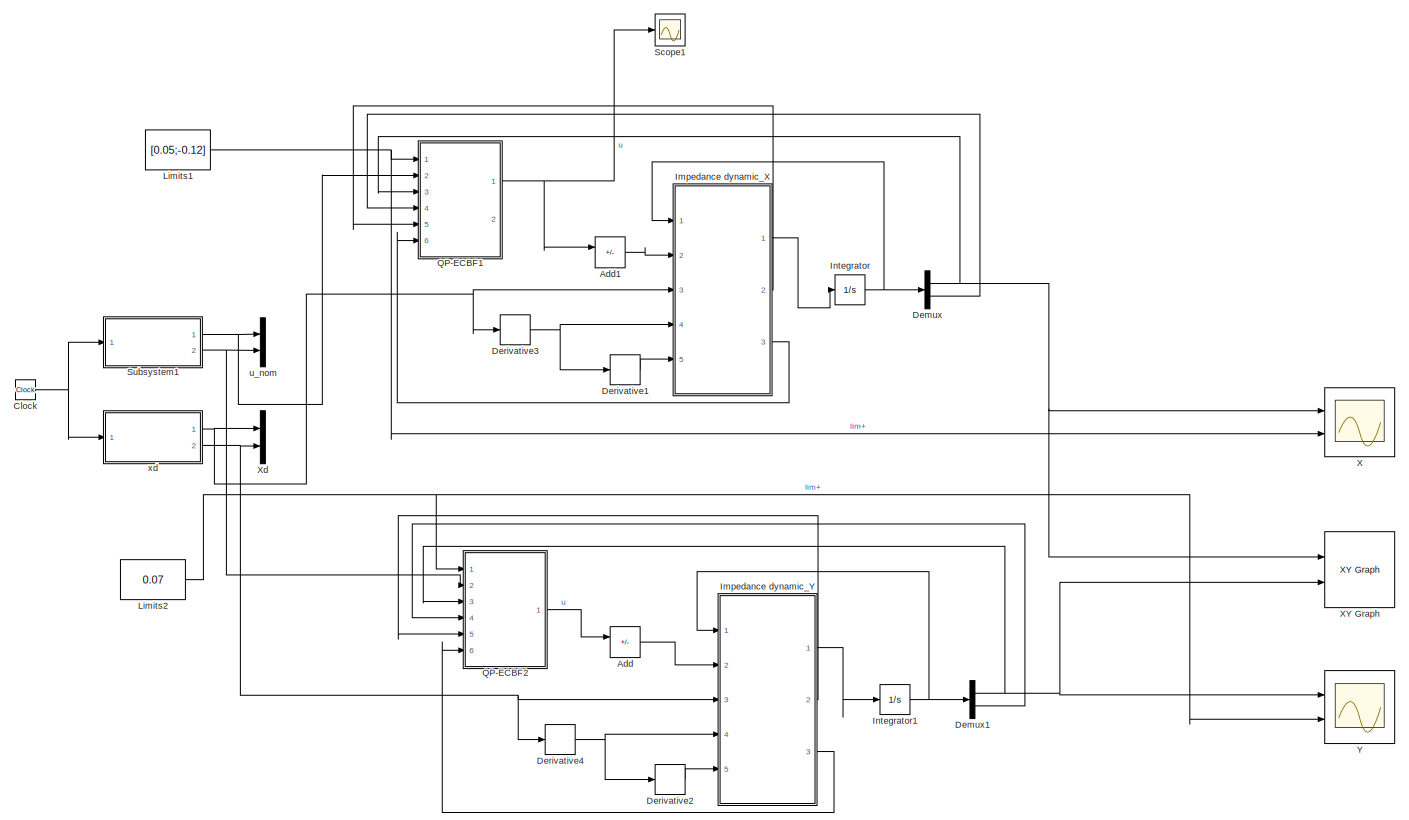
[diagram: root canvas - part 1/1, most of the canvas]
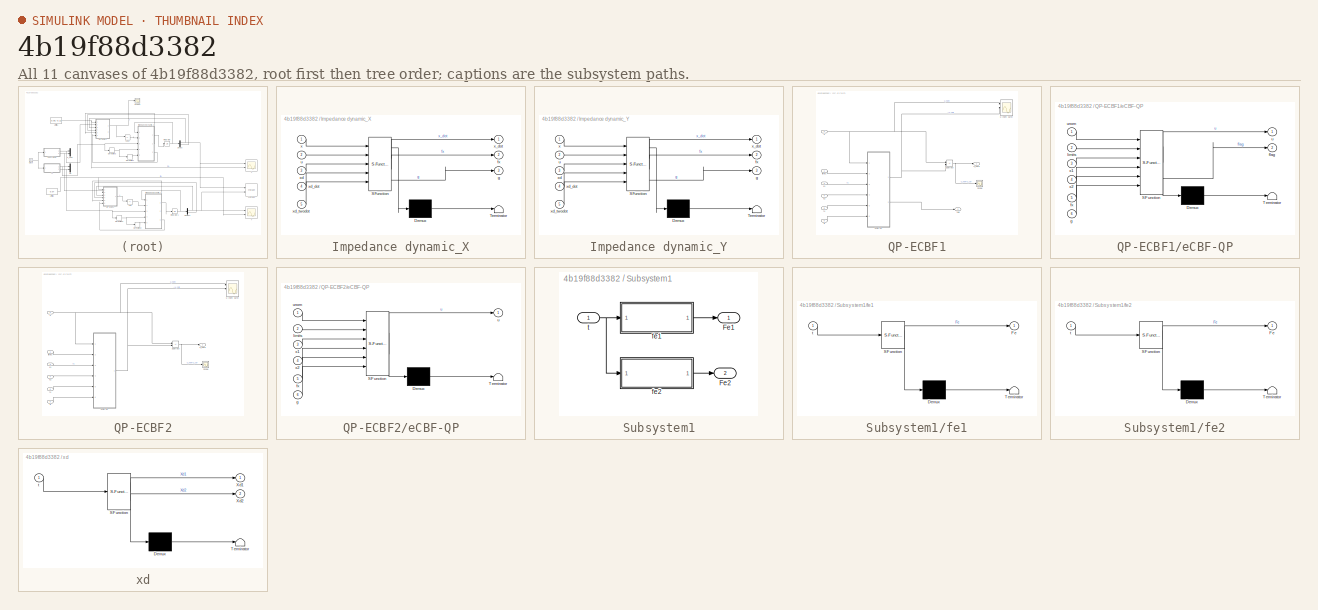
[diagram: thumbnail index - all 11 canvases of the model, root first then tree order]
MODEL slx_4b19f88d3382
KIND model
CONFIG AbsTol = auto
CONFIG EnableMultiTasking = off
CONFIG FixedStep = 0.01
CONFIG MaxStep = auto
CONFIG MinStep = auto
CONFIG RelTol = 1e-3
CONFIG SampleTimeConstraint = Unconstrained
CONFIG SolverName = ode4
CONFIG StartTime = 0.0
CONFIG StopTime = 15
BLOCK [Sum] Add
  IconShape = rectangular
  Inputs = +-
  Ports = [2, 1]
BLOCK [Sum] Add1
  IconShape = rectangular
  Inputs = +-
  Ports = [2, 1]
BLOCK [Clock] Clock
BLOCK [Demux] Demux
  Outputs = 2
  Ports = [1, 2]
BLOCK [Demux] Demux1
  Outputs = 2
  Ports = [1, 2]
BLOCK [Derivative] Derivative1
BLOCK [Derivative] Derivative2
BLOCK [Derivative] Derivative3
BLOCK [Derivative] Derivative4
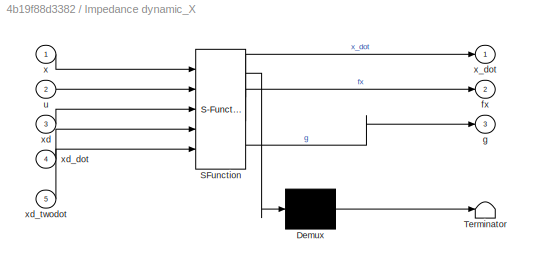
BLOCK [SubSystem] Impedance dynamic_X
  ErrorFcn = Stateflow.Translate.translate
  PermitHierarchicalResolution = ExplicitOnly
  Ports = [5, 3]
  RequestExecContextInheritance = off
  SFBlockType = MATLAB Function
  TreatAsAtomicUnit = on
BLOCK [Demux] Impedance dynamic_X/ Demux 
  Outputs = 1
  Ports = [1, 1]
BLOCK [S-Function] Impedance dynamic_X/ SFunction 
  EnableBusSupport = on
  FunctionName = sf_sfun
  PortCounts = [5 4]
  Ports = [5, 4]
  SFcnIsStateOwnerBlock = off
  SFunctionDeploymentMode = off
  Tag = Stateflow S-Function 7
BLOCK [Terminator] Impedance dynamic_X/ Terminator 
BLOCK [Outport] Impedance dynamic_X/fx
  Port = 2
BLOCK [Outport] Impedance dynamic_X/g
  Port = 3
BLOCK [Inport] Impedance dynamic_X/u
  Port = 2
BLOCK [Inport] Impedance dynamic_X/x
BLOCK [Outport] Impedance dynamic_X/x_dot
BLOCK [Inport] Impedance dynamic_X/xd
  Port = 3
BLOCK [Inport] Impedance dynamic_X/xd_dot
  Port = 4
BLOCK [Inport] Impedance dynamic_X/xd_twodot
  Port = 5
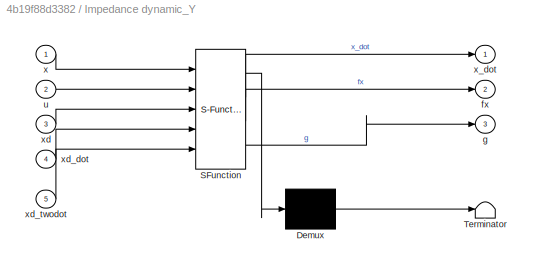
BLOCK [SubSystem] Impedance dynamic_Y
  ErrorFcn = Stateflow.Translate.translate
  PermitHierarchicalResolution = ExplicitOnly
  Ports = [5, 3]
  RequestExecContextInheritance = off
  SFBlockType = MATLAB Function
  TreatAsAtomicUnit = on
BLOCK [Demux] Impedance dynamic_Y/ Demux 
  Outputs = 1
  Ports = [1, 1]
BLOCK [S-Function] Impedance dynamic_Y/ SFunction 
  EnableBusSupport = on
  FunctionName = sf_sfun
  PortCounts = [5 4]
  Ports = [5, 4]
  SFcnIsStateOwnerBlock = off
  SFunctionDeploymentMode = off
  Tag = Stateflow S-Function 1
BLOCK [Terminator] Impedance dynamic_Y/ Terminator 
BLOCK [Outport] Impedance dynamic_Y/fx
  Port = 2
BLOCK [Outport] Impedance dynamic_Y/g
  Port = 3
BLOCK [Inport] Impedance dynamic_Y/u
  Port = 2
BLOCK [Inport] Impedance dynamic_Y/x
BLOCK [Outport] Impedance dynamic_Y/x_dot
BLOCK [Inport] Impedance dynamic_Y/xd
  Port = 3
BLOCK [Inport] Impedance dynamic_Y/xd_dot
  Port = 4
BLOCK [Inport] Impedance dynamic_Y/xd_twodot
  Port = 5
BLOCK [Integrator] Integrator
  InitialCondition = [0.0;0]
  Ports = [1, 1]
BLOCK [Integrator] Integrator1
  InitialCondition = [0.16;0]
  Ports = [1, 1]
BLOCK [Constant] Limits1
  NameLocation = top
  SampleTime = -1
  Value = [0.05;-0.12]
  VectorParams1D = off
BLOCK [Constant] Limits2
  NameLocation = top
  SampleTime = -1
  Value = 0.07
  VectorParams1D = off
BLOCK [SubSystem] QP-ECBF1
  Ports = [6, 2]
  RequestExecContextInheritance = off
BLOCK [Scope] QP-ECBF1/Scope
  Floating = off
  NumInputPorts = 1
  Ports = [1]
  ScopeSpecificationString = Simulink.scopes.TimeScopeBlockCfg('CurrentConfiguration', extmgr.ConfigurationSet(extmgr.Configuration('Core','General UI',true),extmgr.Configuration('Core','Source UI',true),extmgr.Configuration('Sources','WiredSimulink',true,'DataLoggingVariableName','ScopeData1'),extmgr.Configuration('Visuals','Time Domain',true,'SerializedDisplays',{struct('MinYLimReal','-19.25031','MaxYLimReal','6.98011','YLa...<+1451ch>
BLOCK [Sum] QP-ECBF1/Subtract
  IconShape = rectangular
  Inputs = +-
  Ports = [2, 1]
BLOCK [SubSystem] QP-ECBF1/eCBF-QP
  ErrorFcn = Stateflow.Translate.translate
  PermitHierarchicalResolution = ExplicitOnly
  Ports = [6, 2]
  RequestExecContextInheritance = off
  SFBlockType = MATLAB Function
  TreatAsAtomicUnit = on
BLOCK [Demux] QP-ECBF1/eCBF-QP/ Demux 
  Outputs = 1
  Ports = [1, 1]
BLOCK [S-Function] QP-ECBF1/eCBF-QP/ SFunction 
  EnableBusSupport = on
  FunctionName = sf_sfun
  PortCounts = [6 3]
  Ports = [6, 3]
  SFcnIsStateOwnerBlock = off
  SFunctionDeploymentMode = off
  Tag = Stateflow S-Function 6
BLOCK [Terminator] QP-ECBF1/eCBF-QP/ Terminator 
BLOCK [Outport] QP-ECBF1/eCBF-QP/flag
  Port = 2
BLOCK [Inport] QP-ECBF1/eCBF-QP/fx
  Port = 5
BLOCK [Inport] QP-ECBF1/eCBF-QP/g
  Port = 6
BLOCK [Inport] QP-ECBF1/eCBF-QP/limits
  Port = 2
BLOCK [Outport] QP-ECBF1/eCBF-QP/u
BLOCK [Inport] QP-ECBF1/eCBF-QP/unom
BLOCK [Inport] QP-ECBF1/eCBF-QP/x1
  Port = 3
BLOCK [Inport] QP-ECBF1/eCBF-QP/x2
  Port = 4
BLOCK [Outport] QP-ECBF1/flag
  Port = 2
BLOCK [Inport] QP-ECBF1/fx
  Port = 5
BLOCK [Inport] QP-ECBF1/g
  Port = 6
BLOCK [Inport] QP-ECBF1/limits
  NameLocation = left
BLOCK [Inport] QP-ECBF1/u
  NameLocation = left
  Port = 2
BLOCK [Scope] QP-ECBF1/u (nom safe)
  Floating = off
  NumInputPorts = 3
  Ports = [3]
  ScopeSpecificationString = Simulink.scopes.TimeScopeBlockCfg('CurrentConfiguration', extmgr.ConfigurationSet(extmgr.Configuration('Core','General UI',true),extmgr.Configuration('Core','Source UI',true),extmgr.Configuration('Sources','WiredSimulink',true,'DataLoggingVariableName','ScopeData2'),extmgr.Configuration('Visuals','Time Domain',true,'SerializedDisplays',{struct('MinYLimReal','-8.64181','MaxYLimReal','26.56246','YLa...<+1583ch>
BLOCK [Outport] QP-ECBF1/u_safe
  NameLocation = right
BLOCK [Inport] QP-ECBF1/x1
  Port = 3
BLOCK [Inport] QP-ECBF1/x2
  Port = 4
BLOCK [SubSystem] QP-ECBF2
  Ports = [6, 1]
  RequestExecContextInheritance = off
BLOCK [Scope] QP-ECBF2/Scope
  Floating = off
  NumInputPorts = 1
  Ports = [1]
  ScopeSpecificationString = Simulink.scopes.TimeScopeBlockCfg('CurrentConfiguration', extmgr.ConfigurationSet(extmgr.Configuration('Core','General UI',true),extmgr.Configuration('Core','Source UI',true),extmgr.Configuration('Sources','WiredSimulink',true,'DataLoggingVariableName','ScopeData1'),extmgr.Configuration('Visuals','Time Domain',true,'SerializedDisplays',{struct('MinYLimReal','-74.07676','MaxYLimReal','62.38981','YL...<+1453ch>
BLOCK [Sum] QP-ECBF2/Subtract
  IconShape = rectangular
  Inputs = +-
  Ports = [2, 1]
BLOCK [SubSystem] QP-ECBF2/eCBF-QP
  ErrorFcn = Stateflow.Translate.translate
  PermitHierarchicalResolution = ExplicitOnly
  Ports = [6, 1]
  RequestExecContextInheritance = off
  SFBlockType = MATLAB Function
  TreatAsAtomicUnit = on
BLOCK [Demux] QP-ECBF2/eCBF-QP/ Demux 
  Outputs = 1
  Ports = [1, 1]
BLOCK [S-Function] QP-ECBF2/eCBF-QP/ SFunction 
  EnableBusSupport = on
  FunctionName = sf_sfun
  PortCounts = [6 2]
  Ports = [6, 2]
  SFcnIsStateOwnerBlock = off
  SFunctionDeploymentMode = off
  Tag = Stateflow S-Function 3
BLOCK [Terminator] QP-ECBF2/eCBF-QP/ Terminator 
BLOCK [Inport] QP-ECBF2/eCBF-QP/fx
  Port = 5
BLOCK [Inport] QP-ECBF2/eCBF-QP/g
  Port = 6
BLOCK [Inport] QP-ECBF2/eCBF-QP/limits
  Port = 2
BLOCK [Outport] QP-ECBF2/eCBF-QP/u
BLOCK [Inport] QP-ECBF2/eCBF-QP/unom
BLOCK [Inport] QP-ECBF2/eCBF-QP/x1
  Port = 3
BLOCK [Inport] QP-ECBF2/eCBF-QP/x2
  Port = 4
BLOCK [Inport] QP-ECBF2/fx
  Port = 5
BLOCK [Inport] QP-ECBF2/g
  Port = 6
BLOCK [Inport] QP-ECBF2/limits
  NameLocation = left
BLOCK [Inport] QP-ECBF2/u
  NameLocation = left
  Port = 2
BLOCK [Scope] QP-ECBF2/u (nom safe)
  Floating = off
  NumInputPorts = 3
  Ports = [3]
  ScopeSpecificationString = Simulink.scopes.TimeScopeBlockCfg('CurrentConfiguration', extmgr.ConfigurationSet(extmgr.Configuration('Core','General UI',true),extmgr.Configuration('Core','Source UI',true),extmgr.Configuration('Sources','WiredSimulink',true,'DataLoggingVariableName','ScopeData2'),extmgr.Configuration('Visuals','Time Domain',true,'SerializedDisplays',{struct('MinYLimReal','-49.89459','MaxYLimReal','129.1693','YL...<+1580ch>
BLOCK [Outport] QP-ECBF2/u_safe
  NameLocation = right
BLOCK [Inport] QP-ECBF2/x1
  Port = 3
BLOCK [Inport] QP-ECBF2/x2
  Port = 4
BLOCK [Scope] Scope1
  Floating = off
  NumInputPorts = 1
  Ports = [1]
  ScopeSpecificationString = Simulink.scopes.TimeScopeBlockCfg('CurrentConfiguration', extmgr.ConfigurationSet(extmgr.Configuration('Core','General UI',true),extmgr.Configuration('Core','Source UI',true),extmgr.Configuration('Sources','WiredSimulink',true,'DataLoggingVariableName','ScopeData2'),extmgr.Configuration('Visuals','Time Domain',true,'SerializedDisplays',{struct('MinYLimReal','-0.54862','MaxYLimReal','4.93755','YLab...<+1391ch>
BLOCK [SubSystem] Subsystem1
  Ports = [1, 2]
  RequestExecContextInheritance = off
BLOCK [Outport] Subsystem1/Fe1
BLOCK [Outport] Subsystem1/Fe2
  Port = 2
BLOCK [SubSystem] Subsystem1/fe1
  ErrorFcn = Stateflow.Translate.translate
  PermitHierarchicalResolution = ExplicitOnly
  Ports = [1, 1]
  RequestExecContextInheritance = off
  SFBlockType = MATLAB Function
  TreatAsAtomicUnit = on
BLOCK [Demux] Subsystem1/fe1/ Demux 
  Outputs = 1
  Ports = [1, 1]
BLOCK [S-Function] Subsystem1/fe1/ SFunction 
  EnableBusSupport = on
  FunctionName = sf_sfun
  PortCounts = [1 2]
  Ports = [1, 2]
  SFcnIsStateOwnerBlock = off
  SFunctionDeploymentMode = off
  Tag = Stateflow S-Function 2
BLOCK [Terminator] Subsystem1/fe1/ Terminator 
BLOCK [Outport] Subsystem1/fe1/Fe
BLOCK [Inport] Subsystem1/fe1/t
BLOCK [SubSystem] Subsystem1/fe2
  ErrorFcn = Stateflow.Translate.translate
  PermitHierarchicalResolution = ExplicitOnly
  Ports = [1, 1]
  RequestExecContextInheritance = off
  SFBlockType = MATLAB Function
  TreatAsAtomicUnit = on
BLOCK [Demux] Subsystem1/fe2/ Demux 
  Outputs = 1
  Ports = [1, 1]
BLOCK [S-Function] Subsystem1/fe2/ SFunction 
  EnableBusSupport = on
  FunctionName = sf_sfun
  PortCounts = [1 2]
  Ports = [1, 2]
  SFcnIsStateOwnerBlock = off
  SFunctionDeploymentMode = off
  Tag = Stateflow S-Function 4
BLOCK [Terminator] Subsystem1/fe2/ Terminator 
BLOCK [Outport] Subsystem1/fe2/Fe
BLOCK [Inport] Subsystem1/fe2/t
BLOCK [Inport] Subsystem1/t
BLOCK [Scope] X
  Floating = off
  NumInputPorts = 2
  Ports = [2]
  ScopeSpecificationString = Simulink.scopes.TimeScopeBlockCfg('CurrentConfiguration', extmgr.ConfigurationSet(extmgr.Configuration('Core','General UI',true),extmgr.Configuration('Core','Source UI',true),extmgr.Configuration('Sources','WiredSimulink',true,'DataLoggingVariableName','ScopeData1'),extmgr.Configuration('Visuals','Time Domain',true,'SerializedDisplays',{struct('MinYLimReal','-0.14125','MaxYLimReal','0.07125','YLab...<+1415ch>
BLOCK [Reference] XY Graph  REF=simulink/Sinks/XY Graph
  Ports = [2]
  SourceBlock = simulink/Sinks/XY Graph
  SourceProductBaseCode = SL
  SourceType = XY scope.
BLOCK [Mux] Xd
  DisplayOption = bar
  Inputs = 2
  Ports = [2, 1]
BLOCK [Scope] Y
  Floating = off
  NumInputPorts = 2
  Ports = [2]
  ScopeSpecificationString = Simulink.scopes.TimeScopeBlockCfg('CurrentConfiguration', extmgr.ConfigurationSet(extmgr.Configuration('Core','General UI',true),extmgr.Configuration('Core','Source UI',true),extmgr.Configuration('Sources','WiredSimulink',true,'DataLoggingVariableName','ScopeData3'),extmgr.Configuration('Visuals','Time Domain',true,'SerializedDisplays',{struct('MinYLimReal','0.05778','MaxYLimReal','0.18002','YLabe...<+1403ch>
BLOCK [Mux] u_nom
  DisplayOption = bar
  Inputs = 2
  Ports = [2, 1]
BLOCK [SubSystem] xd
  ErrorFcn = Stateflow.Translate.translate
  PermitHierarchicalResolution = ExplicitOnly
  Ports = [1, 2]
  RequestExecContextInheritance = off
  SFBlockType = MATLAB Function
  TreatAsAtomicUnit = on
BLOCK [Demux] xd/ Demux 
  Outputs = 1
  Ports = [1, 1]
BLOCK [S-Function] xd/ SFunction 
  EnableBusSupport = on
  FunctionName = sf_sfun
  PortCounts = [1 3]
  Ports = [1, 3]
  SFcnIsStateOwnerBlock = off
  SFunctionDeploymentMode = off
  Tag = Stateflow S-Function 5
BLOCK [Terminator] xd/ Terminator 
BLOCK [Outport] xd/Xd1
BLOCK [Outport] xd/Xd2
  Port = 2
BLOCK [Inport] xd/t
LINE Add1:1 -> Impedance dynamic_X:2
LINE Add:1 -> Impedance dynamic_Y:2
NET Clock:1 -> Subsystem1:1, xd:1
NET Demux1:1 -> QP-ECBF2:3, XY Graph:2, Y:1
LINE Demux1:2 -> QP-ECBF2:4
NET Demux:1 -> QP-ECBF1:3, X:1, XY Graph:1
LINE Demux:2 -> QP-ECBF1:4
LINE Derivative1:1 -> Impedance dynamic_X:5
LINE Derivative2:1 -> Impedance dynamic_Y:5
NET Derivative3:1 -> Derivative1:1, Impedance dynamic_X:4
NET Derivative4:1 -> Derivative2:1, Impedance dynamic_Y:4
LINE Impedance dynamic_X:1 -> Integrator:1
LINE Impedance dynamic_X:2 -> QP-ECBF1:5
LINE Impedance dynamic_X:3 -> QP-ECBF1:6
LINE Impedance dynamic_Y:1 -> Integrator1:1
LINE Impedance dynamic_Y:2 -> QP-ECBF2:5
LINE Impedance dynamic_Y:3 -> QP-ECBF2:6
NET Integrator1:1 -> Demux1:1, Impedance dynamic_Y:1
NET Integrator:1 -> Demux:1, Impedance dynamic_X:1
NET Limits1:1 -> QP-ECBF1:1, X:2
NET Limits2:1 -> QP-ECBF2:1, Y:2
NET QP-ECBF1/Subtract:1 -> QP-ECBF1/Scope:1, QP-ECBF1/u_safe:1
NET QP-ECBF1/eCBF-QP:1 -> QP-ECBF1/Subtract:2, QP-ECBF1/u (nom safe):2
LINE QP-ECBF1/eCBF-QP:2 -> QP-ECBF1/flag:1
LINE QP-ECBF1/fx:1 -> QP-ECBF1/eCBF-QP:5
LINE QP-ECBF1/g:1 -> QP-ECBF1/eCBF-QP:6
LINE QP-ECBF1/limits:1 -> QP-ECBF1/eCBF-QP:2
NET QP-ECBF1/u:1 -> QP-ECBF1/Subtract:1, QP-ECBF1/eCBF-QP:1, QP-ECBF1/u (nom safe):1
LINE QP-ECBF1/x1:1 -> QP-ECBF1/eCBF-QP:3
LINE QP-ECBF1/x2:1 -> QP-ECBF1/eCBF-QP:4
NET QP-ECBF1:1 -> Add1:1, Scope1:1
NET QP-ECBF2/Subtract:1 -> QP-ECBF2/Scope:1, QP-ECBF2/u_safe:1
NET QP-ECBF2/eCBF-QP:1 -> QP-ECBF2/Subtract:2, QP-ECBF2/u (nom safe):2
LINE QP-ECBF2/fx:1 -> QP-ECBF2/eCBF-QP:5
LINE QP-ECBF2/g:1 -> QP-ECBF2/eCBF-QP:6
LINE QP-ECBF2/limits:1 -> QP-ECBF2/eCBF-QP:2
NET QP-ECBF2/u:1 -> QP-ECBF2/Subtract:1, QP-ECBF2/eCBF-QP:1, QP-ECBF2/u (nom safe):1
LINE QP-ECBF2/x1:1 -> QP-ECBF2/eCBF-QP:3
LINE QP-ECBF2/x2:1 -> QP-ECBF2/eCBF-QP:4
LINE QP-ECBF2:1 -> Add:1
LINE Subsystem1/fe1:1 -> Subsystem1/Fe1:1
LINE Subsystem1/fe2:1 -> Subsystem1/Fe2:1
NET Subsystem1/t:1 -> Subsystem1/fe1:1, Subsystem1/fe2:1
NET Subsystem1:1 -> QP-ECBF1:2, u_nom:1
NET Subsystem1:2 -> QP-ECBF2:2, u_nom:2
NET xd:1 -> Derivative3:1, Impedance dynamic_X:3, Xd:1
NET xd:2 -> Derivative4:1, Impedance dynamic_Y:3, Xd:2
note: NET lines group one-source signal fan-out (src -> all destinations, sorted); 1:1 wires keep LINE
CHART Impedance dynamic_Y states=1 transitions=1
  STATE_LABEL 'eML_blk_kernel()'
  STATE_LABEL 'SCRIPT:\nfunction [x_dot,fx,g] = System(x,u,xd,xd_dot,xd_twodot)\n\n    km = 20;\n    kb = 20;                                                       \n    kk = 100;\n    fx = [x(2);\n        -(1/km)*(kb*(x(2)-xd_dot)+kk*(x(1)-xd)-km*xd_twodot)];\n    g = [0;km^(-1)];\n    x_dot = fx + g*u;\nend\n'
CHART Subsystem1/fe1 states=1 transitions=1
  STATE_LABEL 'eML_blk_kernel()'
  STATE_LABEL 'SCRIPT:\nfunction Fe  = External_force(t)\n\n   Fe = 0*(t<4|t>=11) + (1-cos(pi*t))*(t>=4&t<5) + 2*(t>=5&t<10) + (1+cos(pi*t))*(t>=10&t<11);\n\nend'
CHART QP-ECBF2/eCBF-QP states=1 transitions=1
  STATE_LABEL 'eML_blk_kernel()'
  STATE_LABEL 'SCRIPT:\nfunction u = fcn(unom, limits, x1, x2,fx,g)\n     %Barrier Limits\n    lim     = limits(1);\n \n    %ECBF Gains\n    k1      = 20;\n    k2      = 100;\n    \n    % Maximum Value CBF variables\n    hx      = (x1 - lim)^2 - 0.001 ;  %(lim^2 - x1^2) \n    Lfhx    = 2*(x1 - lim)*x2;\n    \n%     L2fhx   = 2*(x1 - lim)*((2*x1*(x1^2 + x2)) + x1*x2 + x1 + (1 + x1^2)*CTL) + 2*(x1^2 + x2)^2;\n%     eCBF    = L2...<+437ch>'
CHART Subsystem1/fe2 states=1 transitions=1
  STATE_LABEL 'eML_blk_kernel()'
  STATE_LABEL 'SCRIPT:\nfunction Fe  = External_force(t)\n\n   Fe = 0*(t<4|t>=11) + 2*(1-cos(pi*t))*(t>=4&t<5) + 4*(t>=5&t<10) + 2*(1+cos(pi*t))*(t>=10&t<11);\n\nend'
CHART xd states=1 transitions=1
  STATE_LABEL 'eML_blk_kernel()'
  STATE_LABEL 'SCRIPT:\nfunction [Xd1, Xd2] = Desired_traj(t)\n\n    Xd1=0.14*cos(0.5*t);\n    Xd2=0.14*sin(0.5*t);\n    \nend'
CHART QP-ECBF1/eCBF-QP states=1 transitions=1
  STATE_LABEL 'eML_blk_kernel()'
  STATE_LABEL 'SCRIPT:\nfunction [u,flag] = fcn(unom, limits, x1, x2,fx,g)\n     %Barrier Limits\n    lim     = limits(1);\n    lim2    = limits(2);\n \n    %ECBF Gains\n    k1      = 50;\n    k2      = 300;\n    \n    k3      = 50;\n    k4      = 300;\n    % Maximum Value CBF variables\n    hx      = (x1 - lim)^2 - 0.001 ;  %(lim^2 - x1^2) \n    Lfhx    = 2*(x1 - lim)*x2;\n    \n%     L2fhx   = 2*(x1 - lim)*((2*x1*(x1^2 + x2))...<+758ch>'
CHART Impedance dynamic_X states=1 transitions=1
  STATE_LABEL 'eML_blk_kernel()'
  STATE_LABEL 'SCRIPT:\nfunction [x_dot,fx,g] = System(x,u,xd,xd_dot,xd_twodot)\n\n    km = 20;\n    kb = 20;                                                       \n    kk = 100;\n    fx = [x(2);\n        -(1/km)*(kb*(x(2)-xd_dot)+kk*(x(1)-xd)-km*xd_twodot)];\n    g = [0;km^(-1)];\n    x_dot = fx + g*u;\nend\n'
CHART  states=0 transitions=0
CHART  states=0 transitions=0
CHART  states=0 transitions=0
CHART  states=0 transitions=0
CHART  states=0 transitions=0
CHART  states=0 transitions=0
CHART  states=0 transitions=0
